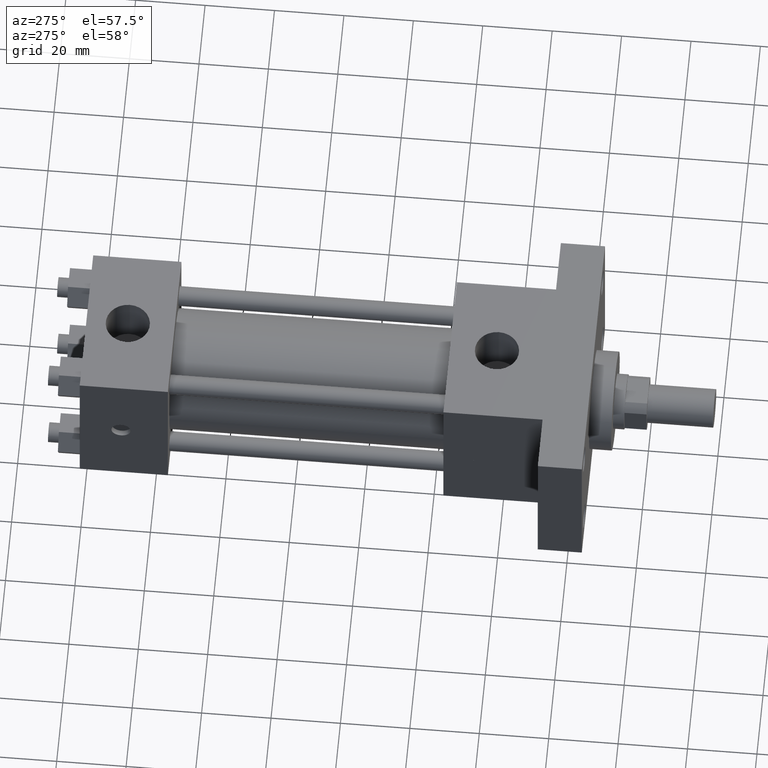
[diagram: clean part render]
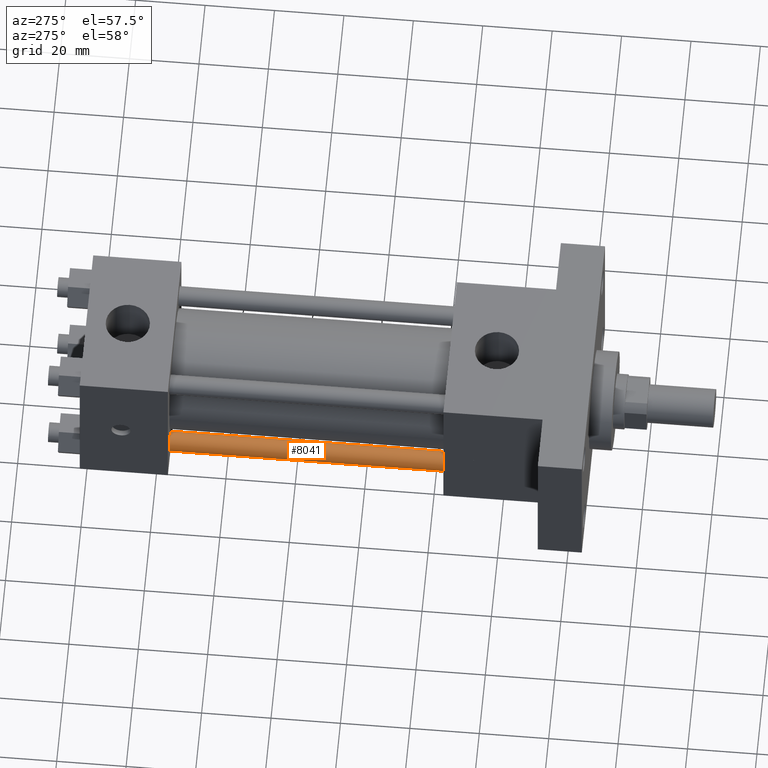
[diagram: same view with one face highlighted and labeled with its STEP entity id]
A machine part, auxiliary view. The second image highlights one B-rep face of the part: STEP entity #8041.
In plain terms, the highlighted cylindrical surface (bore or boss wall) has radius 2.8575 mm, axis along (0, -1, 0).
Its self-contained STEP definition (entity closure, byte-faithful):
#880=EDGE_CURVE('',#886,#886,#881,.T.);
#881=CIRCLE('',#882,2.857500000E+000);
#882=AXIS2_PLACEMENT_3D('',#883,#884,#885);
#883=CARTESIAN_POINT('',(-1.511300000E+001,5.715000000E+001,-1.511300000E+001));
#884=DIRECTION('',(0.0E+000,1.0E+000,0.0E+000));
#885=DIRECTION('',(1.0E+000,0.0E+000,0.0E+000));
#886=VERTEX_POINT('',#887);
#887=CARTESIAN_POINT('',(-1.225550000E+001,5.715000000E+001,-1.511300000E+001));
#1108=FACE_OUTER_BOUND('',#1110,.T.);
#1109=FACE_BOUND('',#1111,.T.);
#1110=EDGE_LOOP('',(#1112));
#1111=EDGE_LOOP('',(#1113));
#1112=ORIENTED_EDGE('',*,*,#1157,.F.);
#1113=ORIENTED_EDGE('',*,*,#880,.T.);
#1114=CYLINDRICAL_SURFACE('',#1115,2.857500000E+000);
#1115=AXIS2_PLACEMENT_3D('',#1116,#1117,#1118);
#1116=CARTESIAN_POINT('',(-1.511300000E+001,1.365250000E+002,-1.511300000E+001));
#1117=DIRECTION('',(0.0E+000,-1.0E+000,0.0E+000));
#1118=DIRECTION('',(0.0E+000,0.0E+000,-1.0E+000));
#1157=EDGE_CURVE('',#1163,#1163,#1158,.T.);
#1158=CIRCLE('',#1159,2.857500000E+000);
#1159=AXIS2_PLACEMENT_3D('',#1160,#1161,#1162);
#1160=CARTESIAN_POINT('',(-1.511300000E+001,1.365250000E+002,-1.511300000E+001));
#1161=DIRECTION('',(0.0E+000,1.0E+000,0.0E+000));
#1162=DIRECTION('',(1.0E+000,0.0E+000,0.0E+000));
#1163=VERTEX_POINT('',#1164);
#1164=CARTESIAN_POINT('',(-1.225550000E+001,1.365250000E+002,-1.511300000E+001));
#8041=ADVANCED_FACE('',(#1108,#1109),#1114,.T.);